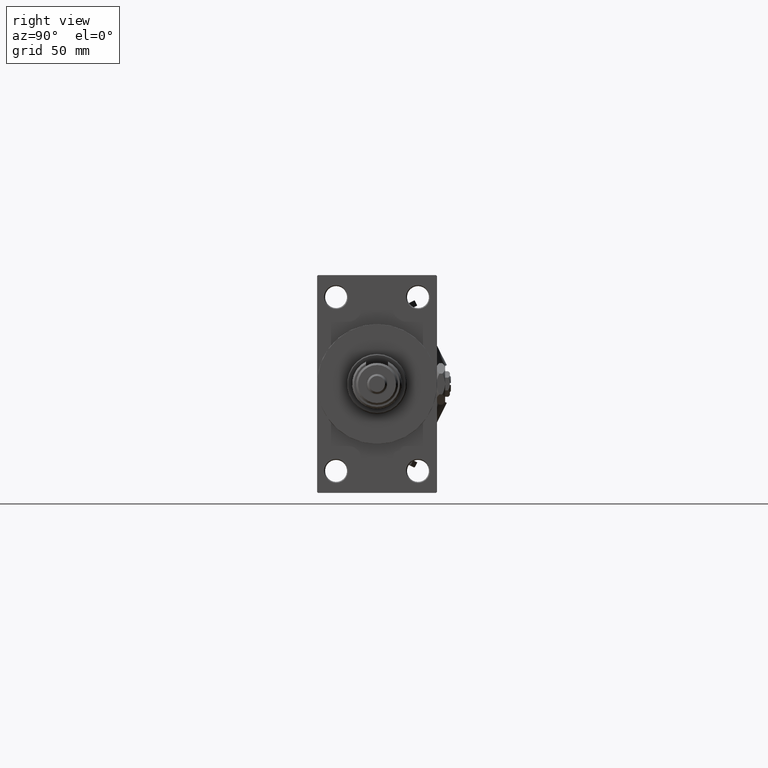
[diagram: clean part render]
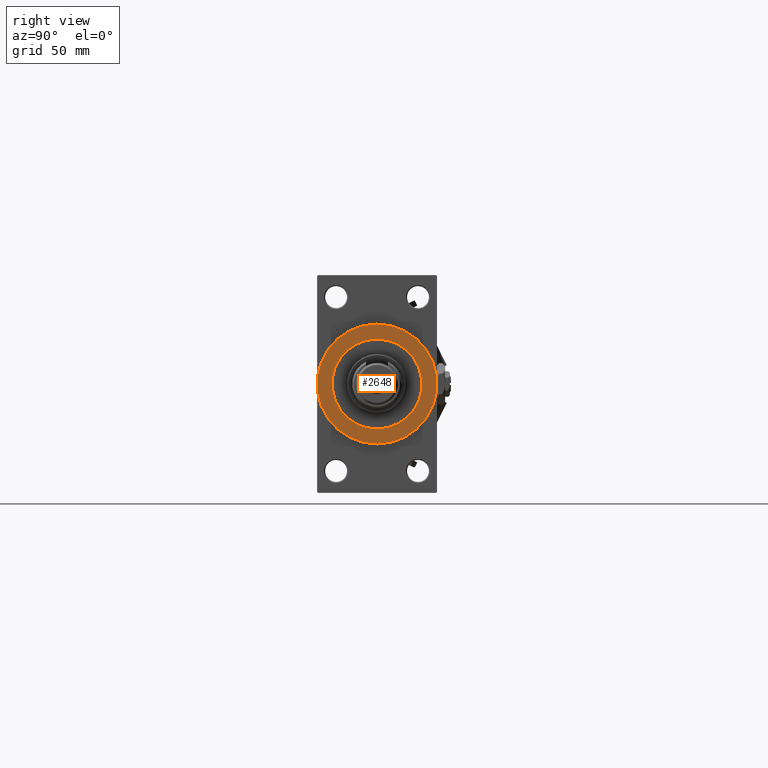
[diagram: same view with one face highlighted and labeled with its STEP entity id]
A machine part, right view. The second image highlights one B-rep face of the part: STEP entity #2648.
In plain terms, the highlighted planar face has unit normal (1, 0, 0).
Its self-contained STEP definition (entity closure, byte-faithful):
#2648 = ADVANCED_FACE ( 'NONE', ( #12178, #3322 ), #19718, .T. ) ;
#3054 = CARTESIAN_POINT ( 'NONE',  ( 253.0000000000000000, 0.000000000000000000, 0.000000000000000000 ) ) ;
#3224 = DIRECTION ( 'NONE',  ( 1.000000000000000000, 0.000000000000000000, 0.000000000000000000 ) ) ;
#3322 = FACE_OUTER_BOUND ( 'NONE', #21169, .T. ) ;
#3683 = CARTESIAN_POINT ( 'NONE',  ( 253.0000000000000000, 3.673940397442059178E-15, -30.00000000000000000 ) ) ;
#4584 = CARTESIAN_POINT ( 'NONE',  ( 253.0000000000000000, 0.000000000000000000, 30.00000000000000000 ) ) ;
#7631 = EDGE_CURVE ( 'NONE', #40293, #16403, #23790, .T. ) ;
#9187 = AXIS2_PLACEMENT_3D ( 'NONE', #36954, #44754, #10934 ) ;
#10934 = DIRECTION ( 'NONE',  ( 0.000000000000000000, 0.000000000000000000, -1.000000000000000000 ) ) ;
#11163 = CIRCLE ( 'NONE', #37830, 22.50000000000000355 ) ;
#12178 = FACE_BOUND ( 'NONE', #39832, .T. ) ;
#14991 = CARTESIAN_POINT ( 'NONE',  ( 253.0000000000000000, 0.000000000000000000, -22.50000000000000355 ) ) ;
#15696 = DIRECTION ( 'NONE',  ( 1.000000000000000000, 0.000000000000000000, 0.000000000000000000 ) ) ;
#16004 = CARTESIAN_POINT ( 'NONE',  ( 253.0000000000000000, 2.755455298081545172E-15, 22.50000000000000355 ) ) ;
#16403 = VERTEX_POINT ( 'NONE', #16004 ) ;
#17810 = EDGE_CURVE ( 'NONE', #16403, #40293, #11163, .T. ) ;
#19091 = EDGE_CURVE ( 'NONE', #51305, #33020, #29264, .T. ) ;
#19718 = PLANE ( 'NONE',  #30577 ) ;
#21169 = EDGE_LOOP ( 'NONE', ( #25330, #44719 ) ) ;
#23790 = CIRCLE ( 'NONE', #9187, 22.50000000000000355 ) ;
#24052 = DIRECTION ( 'NONE',  ( 0.000000000000000000, 0.000000000000000000, -1.000000000000000000 ) ) ;
#25330 = ORIENTED_EDGE ( 'NONE', *, *, #52344, .T. ) ;
#26108 = DIRECTION ( 'NONE',  ( 0.000000000000000000, 0.000000000000000000, -1.000000000000000000 ) ) ;
#27030 = CARTESIAN_POINT ( 'NONE',  ( 253.0000000000000000, 0.000000000000000000, 0.000000000000000000 ) ) ;
#28845 = ORIENTED_EDGE ( 'NONE', *, *, #7631, .F. ) ;
#29264 = CIRCLE ( 'NONE', #30995, 30.00000000000000000 ) ;
#30139 = CARTESIAN_POINT ( 'NONE',  ( 253.0000000000000000, 0.000000000000000000, 0.000000000000000000 ) ) ;
#30577 = AXIS2_PLACEMENT_3D ( 'NONE', #3054, #31836, #44198 ) ;
#30995 = AXIS2_PLACEMENT_3D ( 'NONE', #30139, #42248, #26108 ) ;
#31836 = DIRECTION ( 'NONE',  ( 1.000000000000000000, 0.000000000000000000, 0.000000000000000000 ) ) ;
#32640 = ORIENTED_EDGE ( 'NONE', *, *, #17810, .F. ) ;
#33020 = VERTEX_POINT ( 'NONE', #4584 ) ;
#34455 = AXIS2_PLACEMENT_3D ( 'NONE', #35514, #3224, #51906 ) ;
#35514 = CARTESIAN_POINT ( 'NONE',  ( 253.0000000000000000, 0.000000000000000000, 0.000000000000000000 ) ) ;
#36954 = CARTESIAN_POINT ( 'NONE',  ( 253.0000000000000000, 0.000000000000000000, 0.000000000000000000 ) ) ;
#37830 = AXIS2_PLACEMENT_3D ( 'NONE', #27030, #15696, #24052 ) ;
#39832 = EDGE_LOOP ( 'NONE', ( #28845, #32640 ) ) ;
#40293 = VERTEX_POINT ( 'NONE', #14991 ) ;
#40491 = CIRCLE ( 'NONE', #34455, 30.00000000000000000 ) ;
#42248 = DIRECTION ( 'NONE',  ( 1.000000000000000000, 0.000000000000000000, 0.000000000000000000 ) ) ;
#44198 = DIRECTION ( 'NONE',  ( 0.000000000000000000, 0.000000000000000000, -1.000000000000000000 ) ) ;
#44719 = ORIENTED_EDGE ( 'NONE', *, *, #19091, .T. ) ;
#44754 = DIRECTION ( 'NONE',  ( 1.000000000000000000, 0.000000000000000000, 0.000000000000000000 ) ) ;
#51305 = VERTEX_POINT ( 'NONE', #3683 ) ;
#51906 = DIRECTION ( 'NONE',  ( 0.000000000000000000, 0.000000000000000000, -1.000000000000000000 ) ) ;
#52344 = EDGE_CURVE ( 'NONE', #33020, #51305, #40491, .T. ) ;